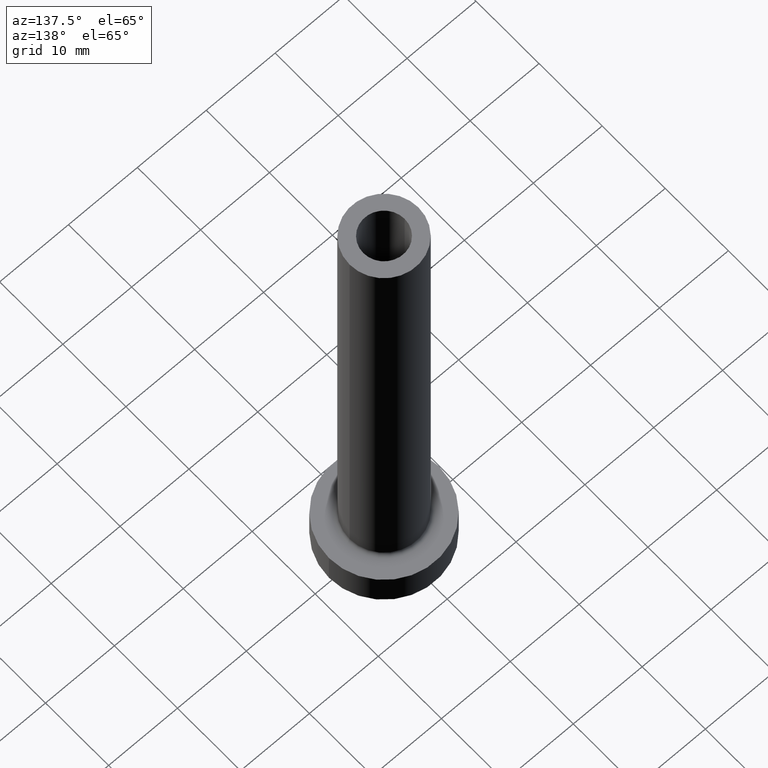
[diagram: clean part render]
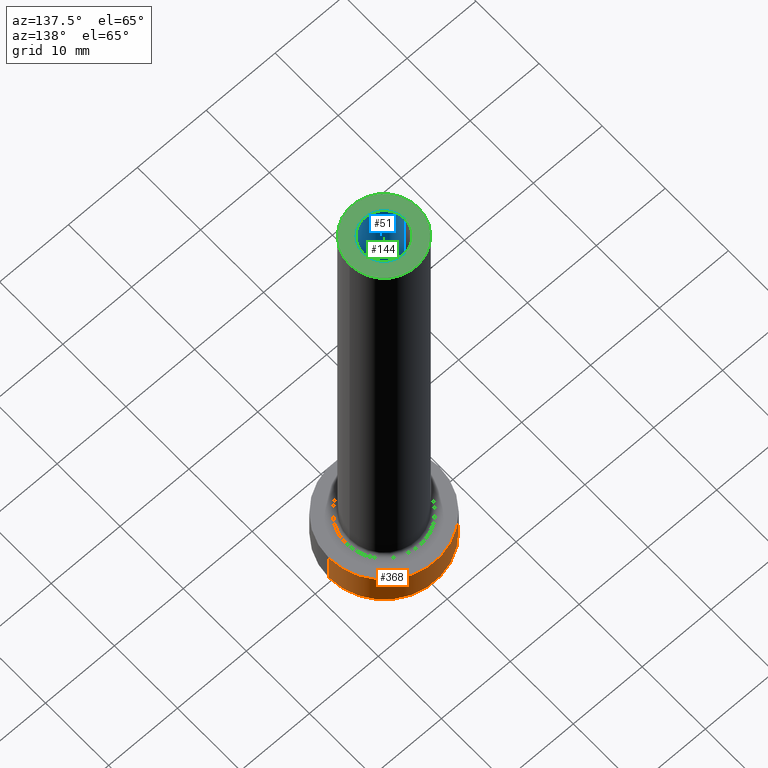
[diagram: same view with three faces highlighted in distinct colors, each labeled with its STEP entity id]
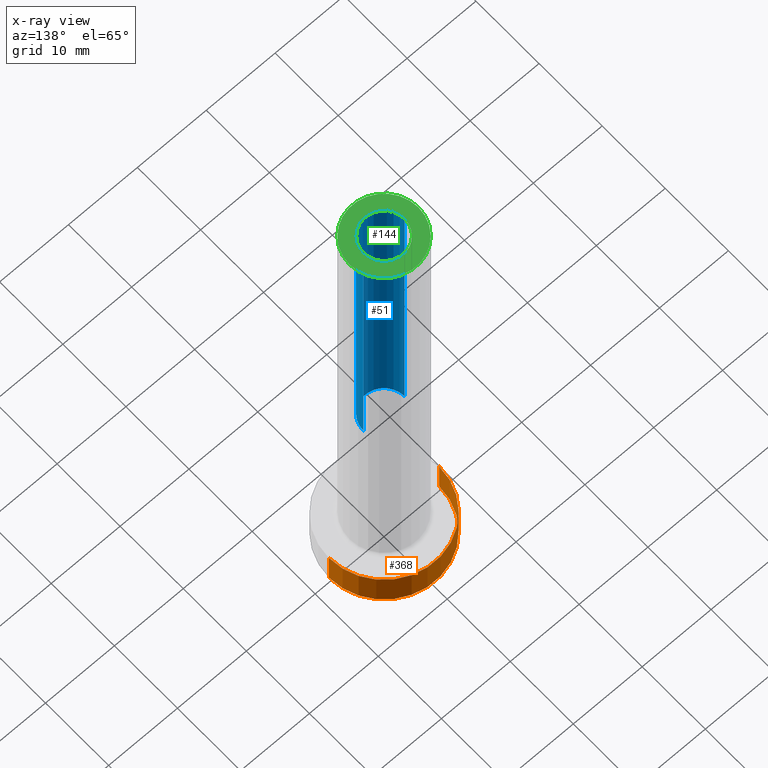
[diagram: x-ray of the same camera — body ghosted, the three highlighted faces saturated]
A machine part, auxiliary view with three faces highlighted in distinct colors.
The next image is the same camera in x-ray (body ghosted, the three faces saturated) — at least one of them is partly hidden behind the body in this view.
Their STEP definitions:

[orange] entity #368 — the highlighted cylindrical surface (partial cylindrical patch) has radius 8 mm, axis along (-0, -0, -1).
#9 = CARTESIAN_POINT ( 'NONE',  ( 8.000000000000000000, 9.797174393178825657E-16, 5.000000000000000000 ) ) ;
#14 = DIRECTION ( 'NONE',  ( -0.000000000000000000, -0.000000000000000000, -1.000000000000000000 ) ) ;
#25 = VECTOR ( 'NONE', #298, 1000.000000000000000 ) ;
#33 = CARTESIAN_POINT ( 'NONE',  ( 8.000000000000000000, 9.797174393178825657E-16, 0.000000000000000000 ) ) ;
#56 = ORIENTED_EDGE ( 'NONE', *, *, #245, .F. ) ;
#57 = DIRECTION ( 'NONE',  ( -1.000000000000000000, 0.000000000000000000, 0.000000000000000000 ) ) ;
#62 = VERTEX_POINT ( 'NONE', #401 ) ;
#76 = EDGE_LOOP ( 'NONE', ( #56, #242, #86, #96 ) ) ;
#78 = CARTESIAN_POINT ( 'NONE',  ( 0.000000000000000000, 0.000000000000000000, 5.000000000000000000 ) ) ;
#83 = LINE ( 'NONE', #9, #25 ) ;
#86 = ORIENTED_EDGE ( 'NONE', *, *, #326, .T. ) ;
#91 = VECTOR ( 'NONE', #14, 1000.000000000000000 ) ;
#96 = ORIENTED_EDGE ( 'NONE', *, *, #433, .F. ) ;
#97 = CIRCLE ( 'NONE', #409, 8.000000000000000000 ) ;
#98 = EDGE_CURVE ( 'NONE', #296, #220, #83, .T. ) ;
#115 = DIRECTION ( 'NONE',  ( -0.000000000000000000, -0.000000000000000000, -1.000000000000000000 ) ) ;
#159 = DIRECTION ( 'NONE',  ( 0.000000000000000000, 0.000000000000000000, 1.000000000000000000 ) ) ;
#167 = AXIS2_PLACEMENT_3D ( 'NONE', #332, #115, #57 ) ;
#193 = LINE ( 'NONE', #323, #91 ) ;
#220 = VERTEX_POINT ( 'NONE', #33 ) ;
#223 = DIRECTION ( 'NONE',  ( 0.000000000000000000, 0.000000000000000000, 1.000000000000000000 ) ) ;
#231 = FACE_OUTER_BOUND ( 'NONE', #76, .T. ) ;
#238 = CARTESIAN_POINT ( 'NONE',  ( 0.000000000000000000, 0.000000000000000000, 0.000000000000000000 ) ) ;
#242 = ORIENTED_EDGE ( 'NONE', *, *, #98, .T. ) ;
#245 = EDGE_CURVE ( 'NONE', #296, #281, #97, .T. ) ;
#281 = VERTEX_POINT ( 'NONE', #354 ) ;
#289 = DIRECTION ( 'NONE',  ( 1.000000000000000000, 0.000000000000000000, 0.000000000000000000 ) ) ;
#296 = VERTEX_POINT ( 'NONE', #423 ) ;
#298 = DIRECTION ( 'NONE',  ( -0.000000000000000000, -0.000000000000000000, -1.000000000000000000 ) ) ;
#323 = CARTESIAN_POINT ( 'NONE',  ( -8.000000000000000000, 0.000000000000000000, 5.000000000000000000 ) ) ;
#326 = EDGE_CURVE ( 'NONE', #220, #62, #427, .T. ) ;
#332 = CARTESIAN_POINT ( 'NONE',  ( 0.000000000000000000, 0.000000000000000000, 5.000000000000000000 ) ) ;
#339 = DIRECTION ( 'NONE',  ( 1.000000000000000000, 0.000000000000000000, 0.000000000000000000 ) ) ;
#354 = CARTESIAN_POINT ( 'NONE',  ( -8.000000000000000000, 0.000000000000000000, 5.000000000000000000 ) ) ;
#368 = ADVANCED_FACE ( 'NONE', ( #231 ), #434, .T. ) ;
#401 = CARTESIAN_POINT ( 'NONE',  ( -8.000000000000000000, 0.000000000000000000, 0.000000000000000000 ) ) ;
#409 = AXIS2_PLACEMENT_3D ( 'NONE', #78, #223, #289 ) ;
#414 = AXIS2_PLACEMENT_3D ( 'NONE', #238, #159, #339 ) ;
#423 = CARTESIAN_POINT ( 'NONE',  ( 8.000000000000000000, 9.797174393178825657E-16, 5.000000000000000000 ) ) ;
#427 = CIRCLE ( 'NONE', #414, 8.000000000000000000 ) ;
#433 = EDGE_CURVE ( 'NONE', #281, #62, #193, .T. ) ;
#434 = CYLINDRICAL_SURFACE ( 'NONE', #167, 8.000000000000000000 ) ;

[blue] entity #51 — the highlighted cylindrical surface (edge-blend (fillet) strip) has radius 3 mm, axis along (0, 0, -1).
#16 = CARTESIAN_POINT ( 'NONE',  ( 3.000000000000000444, 3.673940397442059868E-16, 30.00000000000001421 ) ) ;
#18 = DIRECTION ( 'NONE',  ( 1.000000000000000000, 0.000000000000000000, 0.000000000000000000 ) ) ;
#39 = ORIENTED_EDGE ( 'NONE', *, *, #59, .F. ) ;
#47 = CYLINDRICAL_SURFACE ( 'NONE', #444, 3.000000000000000444 ) ;
#50 = DIRECTION ( 'NONE',  ( 0.000000000000000000, 0.000000000000000000, -1.000000000000000000 ) ) ;
#51 = ADVANCED_FACE ( 'NONE', ( #304 ), #47, .F. ) ;
#59 = EDGE_CURVE ( 'NONE', #369, #327, #216, .T. ) ;
#63 = EDGE_CURVE ( 'NONE', #382, #253, #164, .T. ) ;
#80 = CARTESIAN_POINT ( 'NONE',  ( 0.000000000000000000, 0.000000000000000000, 30.00000000000001421 ) ) ;
#84 = CARTESIAN_POINT ( 'NONE',  ( -3.000000000000000444, 0.000000000000000000, 75.00000000000001421 ) ) ;
#111 = EDGE_CURVE ( 'NONE', #253, #327, #228, .T. ) ;
#125 = DIRECTION ( 'NONE',  ( 0.000000000000000000, 0.000000000000000000, 1.000000000000000000 ) ) ;
#135 = EDGE_LOOP ( 'NONE', ( #244, #335, #39, #394 ) ) ;
#164 = CIRCLE ( 'NONE', #387, 3.000000000000000444 ) ;
#165 = CARTESIAN_POINT ( 'NONE',  ( 0.000000000000000000, 0.000000000000000000, 75.00000000000001421 ) ) ;
#177 = EDGE_CURVE ( 'NONE', #382, #369, #184, .T. ) ;
#184 = LINE ( 'NONE', #388, #203 ) ;
#203 = VECTOR ( 'NONE', #248, 1000.000000000000000 ) ;
#216 = CIRCLE ( 'NONE', #364, 3.000000000000000444 ) ;
#228 = LINE ( 'NONE', #439, #350 ) ;
#244 = ORIENTED_EDGE ( 'NONE', *, *, #63, .T. ) ;
#248 = DIRECTION ( 'NONE',  ( 0.000000000000000000, 0.000000000000000000, -1.000000000000000000 ) ) ;
#253 = VERTEX_POINT ( 'NONE', #357 ) ;
#267 = DIRECTION ( 'NONE',  ( 0.000000000000000000, 0.000000000000000000, -1.000000000000000000 ) ) ;
#269 = DIRECTION ( 'NONE',  ( 0.000000000000000000, 0.000000000000000000, 1.000000000000000000 ) ) ;
#304 = FACE_OUTER_BOUND ( 'NONE', #135, .T. ) ;
#327 = VERTEX_POINT ( 'NONE', #16 ) ;
#335 = ORIENTED_EDGE ( 'NONE', *, *, #111, .T. ) ;
#350 = VECTOR ( 'NONE', #267, 1000.000000000000000 ) ;
#357 = CARTESIAN_POINT ( 'NONE',  ( 3.000000000000000444, 3.673940397442059868E-16, 75.00000000000001421 ) ) ;
#364 = AXIS2_PLACEMENT_3D ( 'NONE', #80, #125, #372 ) ;
#366 = CARTESIAN_POINT ( 'NONE',  ( 0.000000000000000000, 0.000000000000000000, 75.00000000000001421 ) ) ;
#369 = VERTEX_POINT ( 'NONE', #405 ) ;
#372 = DIRECTION ( 'NONE',  ( 1.000000000000000000, 0.000000000000000000, 0.000000000000000000 ) ) ;
#382 = VERTEX_POINT ( 'NONE', #84 ) ;
#387 = AXIS2_PLACEMENT_3D ( 'NONE', #366, #269, #18 ) ;
#388 = CARTESIAN_POINT ( 'NONE',  ( -3.000000000000000444, 0.000000000000000000, 75.00000000000001421 ) ) ;
#394 = ORIENTED_EDGE ( 'NONE', *, *, #177, .F. ) ;
#405 = CARTESIAN_POINT ( 'NONE',  ( -3.000000000000000444, 0.000000000000000000, 30.00000000000001421 ) ) ;
#439 = CARTESIAN_POINT ( 'NONE',  ( 3.000000000000000444, 3.673940397442059868E-16, 75.00000000000001421 ) ) ;
#444 = AXIS2_PLACEMENT_3D ( 'NONE', #165, #50, #445 ) ;
#445 = DIRECTION ( 'NONE',  ( -1.000000000000000000, 0.000000000000000000, 0.000000000000000000 ) ) ;

[green] entity #144 — the highlighted planar face has unit normal (0, 0, 1).
#11 = DIRECTION ( 'NONE',  ( 1.000000000000000000, 0.000000000000000000, 0.000000000000000000 ) ) ;
#18 = DIRECTION ( 'NONE',  ( 1.000000000000000000, 0.000000000000000000, 0.000000000000000000 ) ) ;
#20 = VERTEX_POINT ( 'NONE', #119 ) ;
#22 = DIRECTION ( 'NONE',  ( 1.000000000000000000, 0.000000000000000000, 0.000000000000000000 ) ) ;
#63 = EDGE_CURVE ( 'NONE', #382, #253, #164, .T. ) ;
#74 = ORIENTED_EDGE ( 'NONE', *, *, #63, .F. ) ;
#84 = CARTESIAN_POINT ( 'NONE',  ( -3.000000000000000444, 0.000000000000000000, 75.00000000000001421 ) ) ;
#89 = ORIENTED_EDGE ( 'NONE', *, *, #117, .T. ) ;
#92 = DIRECTION ( 'NONE',  ( 0.000000000000000000, 0.000000000000000000, 1.000000000000000000 ) ) ;
#117 = EDGE_CURVE ( 'NONE', #293, #20, #284, .T. ) ;
#119 = CARTESIAN_POINT ( 'NONE',  ( -5.000000000000000000, 0.000000000000000000, 75.00000000000001421 ) ) ;
#129 = EDGE_CURVE ( 'NONE', #253, #382, #247, .T. ) ;
#140 = CARTESIAN_POINT ( 'NONE',  ( 5.000000000000000000, 6.123233995736766282E-16, 75.00000000000001421 ) ) ;
#143 = PLANE ( 'NONE',  #383 ) ;
#144 = ADVANCED_FACE ( 'NONE', ( #239, #201 ), #143, .T. ) ;
#145 = EDGE_LOOP ( 'NONE', ( #74, #313 ) ) ;
#149 = CARTESIAN_POINT ( 'NONE',  ( 0.000000000000000000, 0.000000000000000000, 75.00000000000001421 ) ) ;
#164 = CIRCLE ( 'NONE', #387, 3.000000000000000444 ) ;
#179 = CIRCLE ( 'NONE', #456, 5.000000000000000000 ) ;
#192 = CARTESIAN_POINT ( 'NONE',  ( 0.000000000000000000, 0.000000000000000000, 75.00000000000001421 ) ) ;
#201 = FACE_OUTER_BOUND ( 'NONE', #418, .T. ) ;
#206 = AXIS2_PLACEMENT_3D ( 'NONE', #192, #333, #11 ) ;
#213 = DIRECTION ( 'NONE',  ( 1.000000000000000000, 0.000000000000000000, 0.000000000000000000 ) ) ;
#217 = AXIS2_PLACEMENT_3D ( 'NONE', #406, #92, #22 ) ;
#237 = ORIENTED_EDGE ( 'NONE', *, *, #276, .T. ) ;
#239 = FACE_BOUND ( 'NONE', #145, .T. ) ;
#247 = CIRCLE ( 'NONE', #217, 3.000000000000000444 ) ;
#251 = DIRECTION ( 'NONE',  ( 1.000000000000000000, 0.000000000000000000, -0.000000000000000000 ) ) ;
#253 = VERTEX_POINT ( 'NONE', #357 ) ;
#269 = DIRECTION ( 'NONE',  ( 0.000000000000000000, 0.000000000000000000, 1.000000000000000000 ) ) ;
#276 = EDGE_CURVE ( 'NONE', #20, #293, #179, .T. ) ;
#284 = CIRCLE ( 'NONE', #206, 5.000000000000000000 ) ;
#293 = VERTEX_POINT ( 'NONE', #140 ) ;
#297 = DIRECTION ( 'NONE',  ( 0.000000000000000000, 0.000000000000000000, 1.000000000000000000 ) ) ;
#313 = ORIENTED_EDGE ( 'NONE', *, *, #129, .F. ) ;
#322 = CARTESIAN_POINT ( 'NONE',  ( 0.000000000000000000, 0.000000000000000000, 75.00000000000001421 ) ) ;
#333 = DIRECTION ( 'NONE',  ( 0.000000000000000000, 0.000000000000000000, 1.000000000000000000 ) ) ;
#357 = CARTESIAN_POINT ( 'NONE',  ( 3.000000000000000444, 3.673940397442059868E-16, 75.00000000000001421 ) ) ;
#365 = DIRECTION ( 'NONE',  ( 0.000000000000000000, 0.000000000000000000, 1.000000000000000000 ) ) ;
#366 = CARTESIAN_POINT ( 'NONE',  ( 0.000000000000000000, 0.000000000000000000, 75.00000000000001421 ) ) ;
#382 = VERTEX_POINT ( 'NONE', #84 ) ;
#383 = AXIS2_PLACEMENT_3D ( 'NONE', #322, #365, #251 ) ;
#387 = AXIS2_PLACEMENT_3D ( 'NONE', #366, #269, #18 ) ;
#406 = CARTESIAN_POINT ( 'NONE',  ( 0.000000000000000000, 0.000000000000000000, 75.00000000000001421 ) ) ;
#418 = EDGE_LOOP ( 'NONE', ( #237, #89 ) ) ;
#456 = AXIS2_PLACEMENT_3D ( 'NONE', #149, #297, #213 ) ;